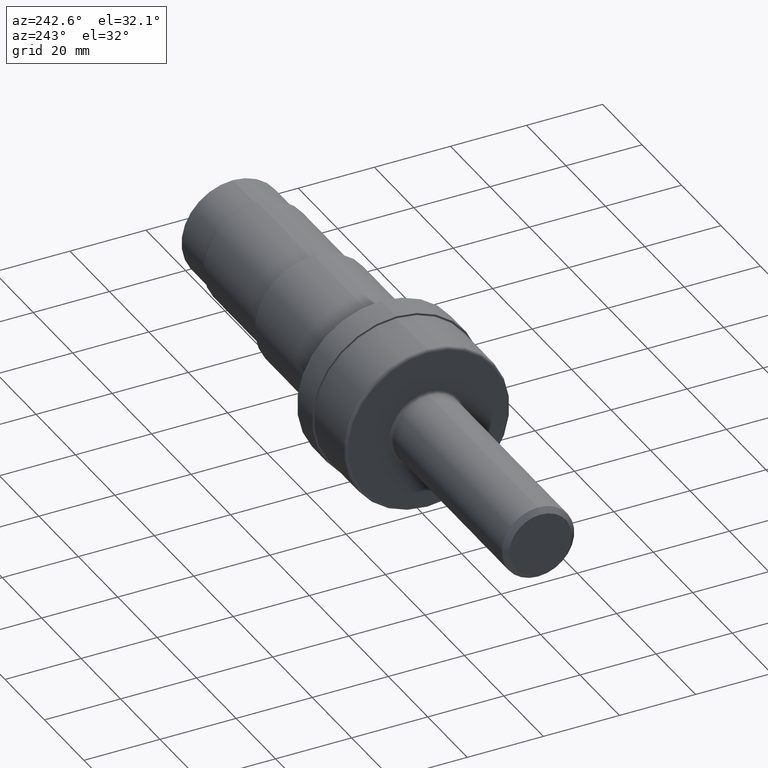
[diagram: clean part render]
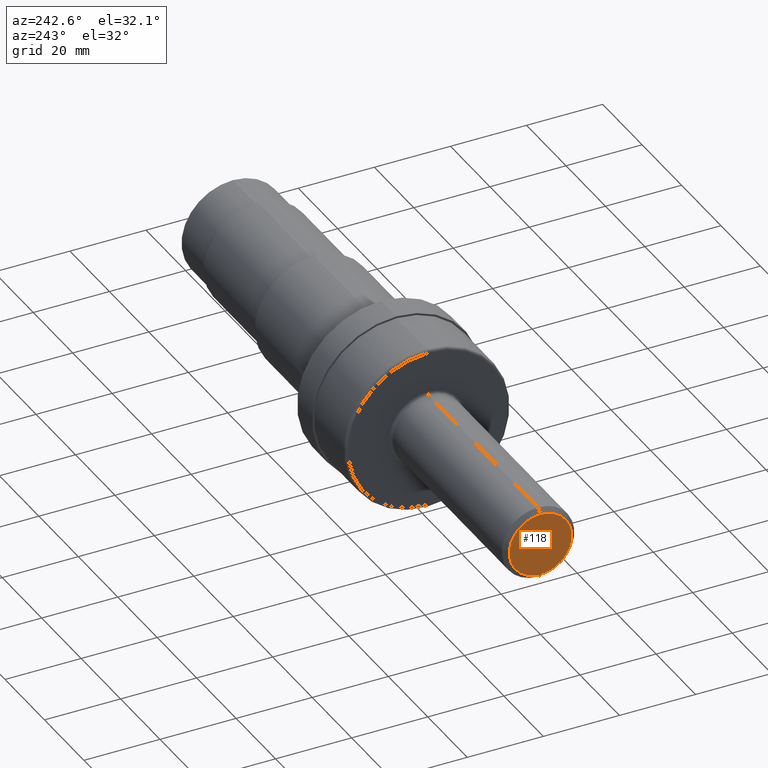
[diagram: same view with one face highlighted and labeled with its STEP entity id]
A machine part, auxiliary view. The second image highlights one B-rep face of the part: STEP entity #118.
In plain terms, the highlighted planar face has unit normal (1, 0, 0).
Its self-contained STEP definition (entity closure, byte-faithful):
#8 = CARTESIAN_POINT ( 'NONE',  ( 0.0000000000000000000, 4.284426826817016740E-17, 0.3248500000000002497 ) ) ;
#48 = CIRCLE ( 'NONE', #539, 0.3248500000000002497 ) ;
#61 = CIRCLE ( 'NONE', #895, 0.3248500000000002497 ) ;
#64 = CARTESIAN_POINT ( 'NONE',  ( 0.0000000000000000000, 0.0000000000000000000, 0.0000000000000000000 ) ) ;
#74 = DIRECTION ( 'NONE',  ( 0.0000000000000000000, 0.0000000000000000000, 1.000000000000000000 ) ) ;
#79 = CARTESIAN_POINT ( 'NONE',  ( 0.0000000000000000000, 0.0000000000000000000, 0.0000000000000000000 ) ) ;
#96 = DIRECTION ( 'NONE',  ( -1.000000000000000000, -0.0000000000000000000, -0.0000000000000000000 ) ) ;
#100 = DIRECTION ( 'NONE',  ( -1.000000000000000000, -0.0000000000000000000, -0.0000000000000000000 ) ) ;
#118 = ADVANCED_FACE ( 'NONE', ( #755 ), #130, .F. ) ;
#130 = PLANE ( 'NONE',  #559 ) ;
#237 = VERTEX_POINT ( 'NONE', #8 ) ;
#301 = EDGE_LOOP ( 'NONE', ( #807, #537 ) ) ;
#454 = EDGE_CURVE ( 'NONE', #456, #237, #61, .T. ) ;
#456 = VERTEX_POINT ( 'NONE', #548 ) ;
#537 = ORIENTED_EDGE ( 'NONE', *, *, #707, .T. ) ;
#539 = AXIS2_PLACEMENT_3D ( 'NONE', #79, #100, #74 ) ;
#548 = CARTESIAN_POINT ( 'NONE',  ( 0.0000000000000000000, 0.0000000000000000000, -0.3248500000000002497 ) ) ;
#559 = AXIS2_PLACEMENT_3D ( 'NONE', #64, #947, #810 ) ;
#659 = DIRECTION ( 'NONE',  ( 0.0000000000000000000, 0.0000000000000000000, 1.000000000000000000 ) ) ;
#707 = EDGE_CURVE ( 'NONE', #237, #456, #48, .T. ) ;
#755 = FACE_OUTER_BOUND ( 'NONE', #301, .T. ) ;
#805 = CARTESIAN_POINT ( 'NONE',  ( 0.0000000000000000000, 0.0000000000000000000, 0.0000000000000000000 ) ) ;
#807 = ORIENTED_EDGE ( 'NONE', *, *, #454, .T. ) ;
#810 = DIRECTION ( 'NONE',  ( 0.0000000000000000000, 0.0000000000000000000, -1.000000000000000000 ) ) ;
#895 = AXIS2_PLACEMENT_3D ( 'NONE', #805, #96, #659 ) ;
#947 = DIRECTION ( 'NONE',  ( 1.000000000000000000, 0.0000000000000000000, 0.0000000000000000000 ) ) ;